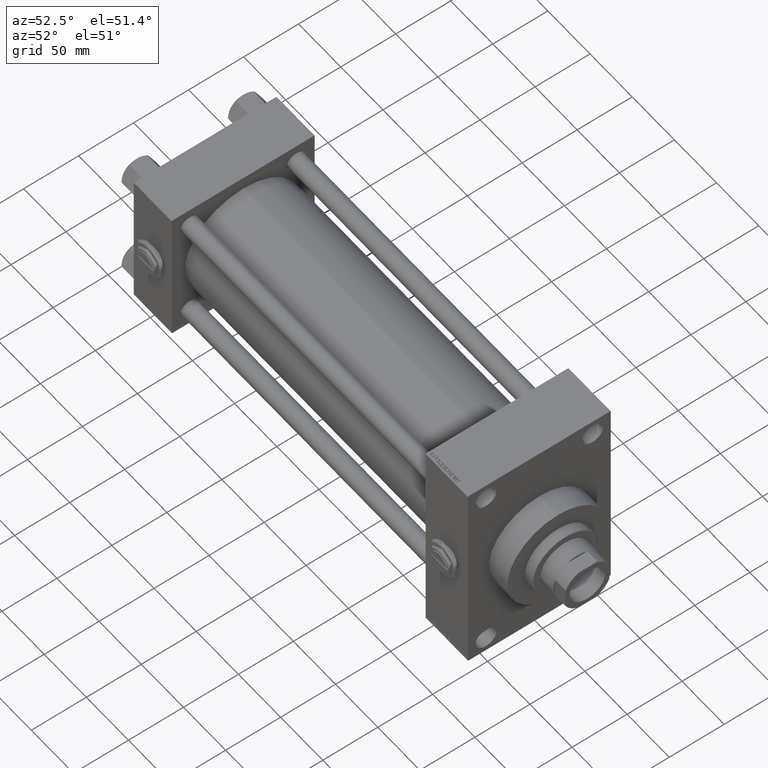
[diagram: clean part render]
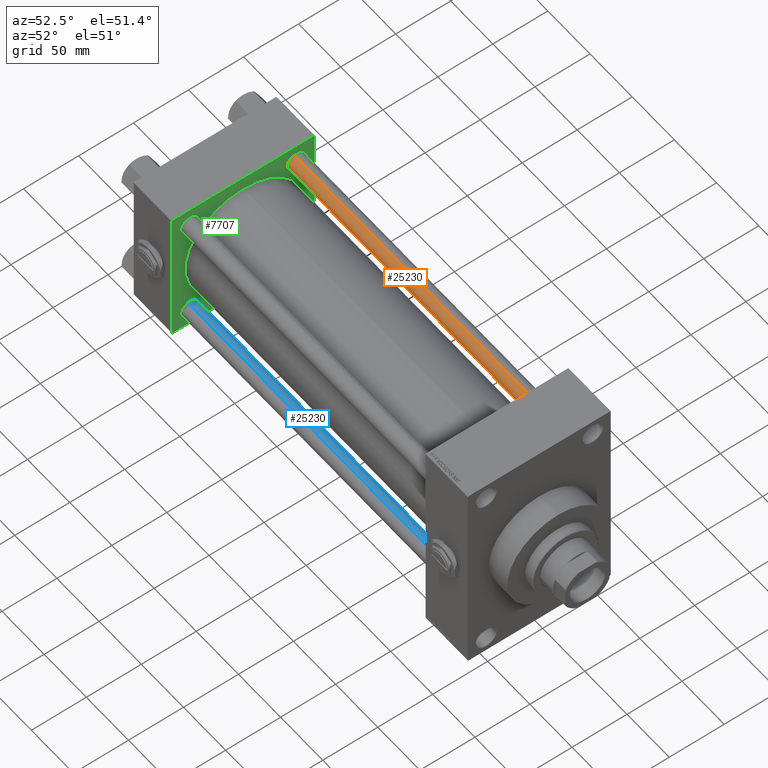
[diagram: same view with three faces highlighted in distinct colors, each labeled with its STEP entity id]
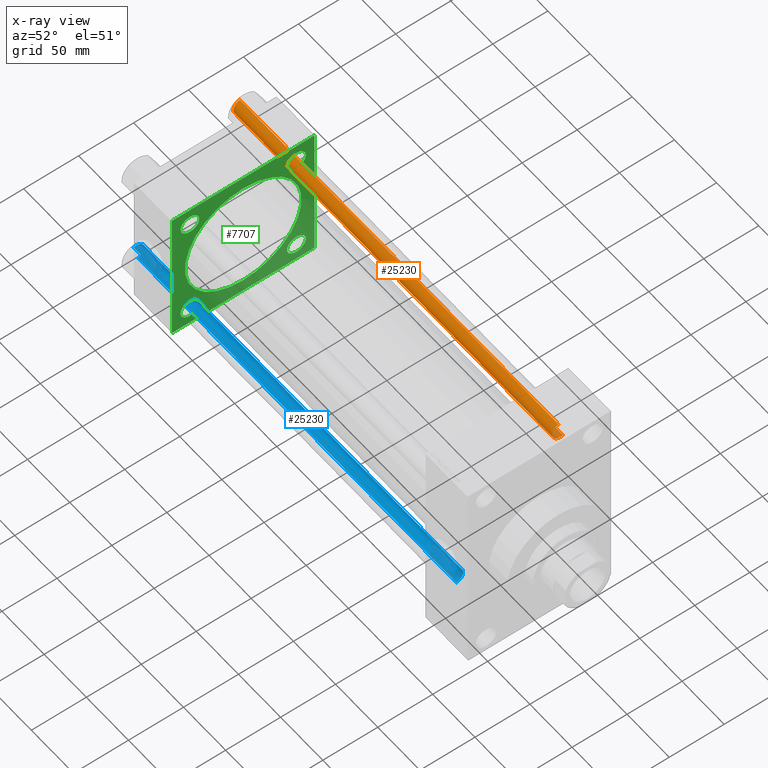
[diagram: x-ray of the same camera — body ghosted, the three highlighted faces saturated]
A machine part, auxiliary view with three faces highlighted in distinct colors.
The next image is the same camera in x-ray (body ghosted, the three faces saturated) — at least one of them is partly hidden behind the body in this view.
Their STEP definitions:

[orange] entity #25230 — the highlighted cylindrical surface (edge-blend (fillet) strip) has radius 8 mm, axis along (-1, -0, 0).
#1345 = CARTESIAN_POINT ( 'NONE',  ( 8.000000000000000000, 9.797174393178825657E-16, 379.0000000000000000 ) ) ;
#1782 = DIRECTION ( 'NONE',  ( -0.000000000000000000, -0.000000000000000000, 1.000000000000000000 ) ) ;
#2384 = CYLINDRICAL_SURFACE ( 'NONE', #41994, 8.000000000000000000 ) ;
#2885 = DIRECTION ( 'NONE',  ( -0.000000000000000000, -0.000000000000000000, -1.000000000000000000 ) ) ;
#4001 = CIRCLE ( 'NONE', #41771, 8.000000000000000000 ) ;
#4985 = AXIS2_PLACEMENT_3D ( 'NONE', #42379, #22509, #41626 ) ;
#5133 = LINE ( 'NONE', #1345, #46647 ) ;
#6631 = EDGE_CURVE ( 'NONE', #33173, #31522, #4001, .T. ) ;
#7261 = EDGE_CURVE ( 'NONE', #46521, #31522, #5133, .T. ) ;
#9751 = CARTESIAN_POINT ( 'NONE',  ( 8.000000000000000000, 9.797174393178825657E-16, 0.4999999999998894218 ) ) ;
#9963 = LINE ( 'NONE', #25561, #47897 ) ;
#10426 = VERTEX_POINT ( 'NONE', #31128 ) ;
#11110 = ORIENTED_EDGE ( 'NONE', *, *, #7261, .F. ) ;
#13484 = DIRECTION ( 'NONE',  ( -1.000000000000000000, 0.000000000000000000, 0.000000000000000000 ) ) ;
#16716 = DIRECTION ( 'NONE',  ( -0.000000000000000000, -0.000000000000000000, -1.000000000000000000 ) ) ;
#19319 = ORIENTED_EDGE ( 'NONE', *, *, #33143, .T. ) ;
#21166 = ORIENTED_EDGE ( 'NONE', *, *, #24322, .T. ) ;
#21447 = CARTESIAN_POINT ( 'NONE',  ( 8.000000000000000000, 9.797174393178825657E-16, 378.4999999999999432 ) ) ;
#21655 = EDGE_LOOP ( 'NONE', ( #11110, #21166, #19319, #22563 ) ) ;
#21787 = DIRECTION ( 'NONE',  ( -0.000000000000000000, -0.000000000000000000, -1.000000000000000000 ) ) ;
#22509 = DIRECTION ( 'NONE',  ( 0.000000000000000000, 0.000000000000000000, -1.000000000000000000 ) ) ;
#22563 = ORIENTED_EDGE ( 'NONE', *, *, #6631, .T. ) ;
#24322 = EDGE_CURVE ( 'NONE', #46521, #10426, #27497, .T. ) ;
#25203 = DIRECTION ( 'NONE',  ( 1.000000000000000000, 0.000000000000000000, 0.000000000000000000 ) ) ;
#25230 = ADVANCED_FACE ( 'NONE', ( #45179 ), #2384, .T. ) ;
#25561 = CARTESIAN_POINT ( 'NONE',  ( -8.000000000000000000, 0.000000000000000000, 379.0000000000000000 ) ) ;
#27497 = CIRCLE ( 'NONE', #4985, 8.000000000000000000 ) ;
#28719 = CARTESIAN_POINT ( 'NONE',  ( 0.000000000000000000, 0.000000000000000000, 0.4999999999998894218 ) ) ;
#31128 = CARTESIAN_POINT ( 'NONE',  ( -8.000000000000000000, 0.000000000000000000, 378.4999999999999432 ) ) ;
#31522 = VERTEX_POINT ( 'NONE', #9751 ) ;
#33143 = EDGE_CURVE ( 'NONE', #10426, #33173, #9963, .T. ) ;
#33173 = VERTEX_POINT ( 'NONE', #43949 ) ;
#40413 = CARTESIAN_POINT ( 'NONE',  ( 0.000000000000000000, 0.000000000000000000, 379.0000000000000000 ) ) ;
#41626 = DIRECTION ( 'NONE',  ( 1.000000000000000000, 0.000000000000000000, 0.000000000000000000 ) ) ;
#41771 = AXIS2_PLACEMENT_3D ( 'NONE', #28719, #1782, #25203 ) ;
#41994 = AXIS2_PLACEMENT_3D ( 'NONE', #40413, #21787, #13484 ) ;
#42379 = CARTESIAN_POINT ( 'NONE',  ( 0.000000000000000000, 0.000000000000000000, 378.4999999999999432 ) ) ;
#43949 = CARTESIAN_POINT ( 'NONE',  ( -8.000000000000000000, 0.000000000000000000, 0.4999999999998894218 ) ) ;
#45179 = FACE_OUTER_BOUND ( 'NONE', #21655, .T. ) ;
#46521 = VERTEX_POINT ( 'NONE', #21447 ) ;
#46647 = VECTOR ( 'NONE', #16716, 1000.000000000000000 ) ;
#47897 = VECTOR ( 'NONE', #2885, 1000.000000000000000 ) ;

[blue] entity #25230 — the highlighted cylindrical surface (edge-blend (fillet) strip) has radius 8 mm, axis along (-1, 0, 0).
#1345 = CARTESIAN_POINT ( 'NONE',  ( 8.000000000000000000, 9.797174393178825657E-16, 379.0000000000000000 ) ) ;
#1782 = DIRECTION ( 'NONE',  ( -0.000000000000000000, -0.000000000000000000, 1.000000000000000000 ) ) ;
#2384 = CYLINDRICAL_SURFACE ( 'NONE', #41994, 8.000000000000000000 ) ;
#2885 = DIRECTION ( 'NONE',  ( -0.000000000000000000, -0.000000000000000000, -1.000000000000000000 ) ) ;
#4001 = CIRCLE ( 'NONE', #41771, 8.000000000000000000 ) ;
#4985 = AXIS2_PLACEMENT_3D ( 'NONE', #42379, #22509, #41626 ) ;
#5133 = LINE ( 'NONE', #1345, #46647 ) ;
#6631 = EDGE_CURVE ( 'NONE', #33173, #31522, #4001, .T. ) ;
#7261 = EDGE_CURVE ( 'NONE', #46521, #31522, #5133, .T. ) ;
#9751 = CARTESIAN_POINT ( 'NONE',  ( 8.000000000000000000, 9.797174393178825657E-16, 0.4999999999998894218 ) ) ;
#9963 = LINE ( 'NONE', #25561, #47897 ) ;
#10426 = VERTEX_POINT ( 'NONE', #31128 ) ;
#11110 = ORIENTED_EDGE ( 'NONE', *, *, #7261, .F. ) ;
#13484 = DIRECTION ( 'NONE',  ( -1.000000000000000000, 0.000000000000000000, 0.000000000000000000 ) ) ;
#16716 = DIRECTION ( 'NONE',  ( -0.000000000000000000, -0.000000000000000000, -1.000000000000000000 ) ) ;
#19319 = ORIENTED_EDGE ( 'NONE', *, *, #33143, .T. ) ;
#21166 = ORIENTED_EDGE ( 'NONE', *, *, #24322, .T. ) ;
#21447 = CARTESIAN_POINT ( 'NONE',  ( 8.000000000000000000, 9.797174393178825657E-16, 378.4999999999999432 ) ) ;
#21655 = EDGE_LOOP ( 'NONE', ( #11110, #21166, #19319, #22563 ) ) ;
#21787 = DIRECTION ( 'NONE',  ( -0.000000000000000000, -0.000000000000000000, -1.000000000000000000 ) ) ;
#22509 = DIRECTION ( 'NONE',  ( 0.000000000000000000, 0.000000000000000000, -1.000000000000000000 ) ) ;
#22563 = ORIENTED_EDGE ( 'NONE', *, *, #6631, .T. ) ;
#24322 = EDGE_CURVE ( 'NONE', #46521, #10426, #27497, .T. ) ;
#25203 = DIRECTION ( 'NONE',  ( 1.000000000000000000, 0.000000000000000000, 0.000000000000000000 ) ) ;
#25230 = ADVANCED_FACE ( 'NONE', ( #45179 ), #2384, .T. ) ;
#25561 = CARTESIAN_POINT ( 'NONE',  ( -8.000000000000000000, 0.000000000000000000, 379.0000000000000000 ) ) ;
#27497 = CIRCLE ( 'NONE', #4985, 8.000000000000000000 ) ;
#28719 = CARTESIAN_POINT ( 'NONE',  ( 0.000000000000000000, 0.000000000000000000, 0.4999999999998894218 ) ) ;
#31128 = CARTESIAN_POINT ( 'NONE',  ( -8.000000000000000000, 0.000000000000000000, 378.4999999999999432 ) ) ;
#31522 = VERTEX_POINT ( 'NONE', #9751 ) ;
#33143 = EDGE_CURVE ( 'NONE', #10426, #33173, #9963, .T. ) ;
#33173 = VERTEX_POINT ( 'NONE', #43949 ) ;
#40413 = CARTESIAN_POINT ( 'NONE',  ( 0.000000000000000000, 0.000000000000000000, 379.0000000000000000 ) ) ;
#41626 = DIRECTION ( 'NONE',  ( 1.000000000000000000, 0.000000000000000000, 0.000000000000000000 ) ) ;
#41771 = AXIS2_PLACEMENT_3D ( 'NONE', #28719, #1782, #25203 ) ;
#41994 = AXIS2_PLACEMENT_3D ( 'NONE', #40413, #21787, #13484 ) ;
#42379 = CARTESIAN_POINT ( 'NONE',  ( 0.000000000000000000, 0.000000000000000000, 378.4999999999999432 ) ) ;
#43949 = CARTESIAN_POINT ( 'NONE',  ( -8.000000000000000000, 0.000000000000000000, 0.4999999999998894218 ) ) ;
#45179 = FACE_OUTER_BOUND ( 'NONE', #21655, .T. ) ;
#46521 = VERTEX_POINT ( 'NONE', #21447 ) ;
#46647 = VECTOR ( 'NONE', #16716, 1000.000000000000000 ) ;
#47897 = VECTOR ( 'NONE', #2885, 1000.000000000000000 ) ;

[green] entity #7707 — the highlighted planar face has unit normal (-1, 0, 0).
#72 = CIRCLE ( 'NONE', #18604, 8.499999999999952038 ) ;
#161 = ORIENTED_EDGE ( 'NONE', *, *, #5765, .F. ) ;
#284 = DIRECTION ( 'NONE',  ( 0.000000000000000000, -1.000000000000000000, -1.067522139062650425E-16 ) ) ;
#549 = AXIS2_PLACEMENT_3D ( 'NONE', #9946, #6657, #22020 ) ;
#576 = EDGE_CURVE ( 'NONE', #32080, #41753, #20695, .T. ) ;
#738 = EDGE_LOOP ( 'NONE', ( #42677, #45671 ) ) ;
#843 = AXIS2_PLACEMENT_3D ( 'NONE', #13878, #40544, #32999 ) ;
#871 = AXIS2_PLACEMENT_3D ( 'NONE', #24157, #20384, #38996 ) ;
#1547 = AXIS2_PLACEMENT_3D ( 'NONE', #41128, #34817, #11661 ) ;
#1933 = DIRECTION ( 'NONE',  ( -0.000000000000000000, -0.7071067811865672237, -0.7071067811865279218 ) ) ;
#2108 = CARTESIAN_POINT ( 'NONE',  ( 45.00000000000000000, 65.00000000000000000, 65.00000000000001421 ) ) ;
#2163 = CARTESIAN_POINT ( 'NONE',  ( 45.00000000000000000, -65.00000000000000000, -64.49999999999991473 ) ) ;
#2636 = CIRCLE ( 'NONE', #30775, 53.00000000000000711 ) ;
#2661 = ORIENTED_EDGE ( 'NONE', *, *, #46155, .T. ) ;
#2705 = CARTESIAN_POINT ( 'NONE',  ( 45.00000000000000000, -64.49999999999997158, 65.00000000000000000 ) ) ;
#2958 = CARTESIAN_POINT ( 'NONE',  ( 45.00000000000000000, -48.44999999999999574, -48.45000000000003126 ) ) ;
#3082 = ORIENTED_EDGE ( 'NONE', *, *, #16534, .F. ) ;
#3135 = ORIENTED_EDGE ( 'NONE', *, *, #28041, .T. ) ;
#3374 = ORIENTED_EDGE ( 'NONE', *, *, #8173, .T. ) ;
#3909 = DIRECTION ( 'NONE',  ( 1.000000000000000000, -0.000000000000000000, 0.000000000000000000 ) ) ;
#4021 = CARTESIAN_POINT ( 'NONE',  ( 45.00000000000000000, -48.44999999999999574, 56.95000000000008811 ) ) ;
#4052 = ORIENTED_EDGE ( 'NONE', *, *, #49639, .T. ) ;
#4556 = CARTESIAN_POINT ( 'NONE',  ( 45.00000000000000000, 64.49999999999997158, 65.00000000000001421 ) ) ;
#4975 = LINE ( 'NONE', #13776, #45740 ) ;
#5450 = EDGE_CURVE ( 'NONE', #18621, #9347, #38635, .T. ) ;
#5635 = VERTEX_POINT ( 'NONE', #43919 ) ;
#5765 = EDGE_CURVE ( 'NONE', #34366, #45328, #44962, .T. ) ;
#6067 = FACE_BOUND ( 'NONE', #13481, .T. ) ;
#6428 = VERTEX_POINT ( 'NONE', #11388 ) ;
#6657 = DIRECTION ( 'NONE',  ( -1.000000000000000000, 0.000000000000000000, -0.000000000000000000 ) ) ;
#6844 = CARTESIAN_POINT ( 'NONE',  ( 45.00000000000000000, 64.49999999999997158, -64.99999999999998579 ) ) ;
#7100 = CARTESIAN_POINT ( 'NONE',  ( 45.00000000000000000, 65.00000000000000000, -64.99999999999998579 ) ) ;
#7707 = ADVANCED_FACE ( 'NONE', ( #24466, #6067, #9351, #44331, #44566, #13132 ), #24710, .F. ) ;
#7939 = DIRECTION ( 'NONE',  ( 0.000000000000000000, 0.000000000000000000, 1.000000000000000000 ) ) ;
#8044 = VECTOR ( 'NONE', #25276, 1000.000000000000000 ) ;
#8173 = EDGE_CURVE ( 'NONE', #41753, #32080, #46681, .T. ) ;
#8645 = ORIENTED_EDGE ( 'NONE', *, *, #8913, .T. ) ;
#8671 = ORIENTED_EDGE ( 'NONE', *, *, #5450, .F. ) ;
#8691 = VERTEX_POINT ( 'NONE', #4021 ) ;
#8913 = EDGE_CURVE ( 'NONE', #42218, #33335, #72, .T. ) ;
#9022 = DIRECTION ( 'NONE',  ( 0.000000000000000000, 0.000000000000000000, 1.000000000000000000 ) ) ;
#9224 = DIRECTION ( 'NONE',  ( -1.000000000000000000, 0.000000000000000000, -0.000000000000000000 ) ) ;
#9347 = VERTEX_POINT ( 'NONE', #40354 ) ;
#9351 = FACE_BOUND ( 'NONE', #20090, .T. ) ;
#9635 = EDGE_CURVE ( 'NONE', #32200, #43659, #34787, .T. ) ;
#9731 = AXIS2_PLACEMENT_3D ( 'NONE', #2958, #14057, #44999 ) ;
#9946 = CARTESIAN_POINT ( 'NONE',  ( 45.00000000000000000, -48.44999999999999574, 48.45000000000003126 ) ) ;
#11388 = CARTESIAN_POINT ( 'NONE',  ( 45.00000000000000000, -65.00000000000000000, 64.50000000000000000 ) ) ;
#11661 = DIRECTION ( 'NONE',  ( 0.000000000000000000, 0.000000000000000000, 1.000000000000000000 ) ) ;
#11813 = AXIS2_PLACEMENT_3D ( 'NONE', #28604, #9224, #47208 ) ;
#13132 = FACE_OUTER_BOUND ( 'NONE', #39622, .T. ) ;
#13481 = EDGE_LOOP ( 'NONE', ( #4052, #8645 ) ) ;
#13568 = DIRECTION ( 'NONE',  ( 0.000000000000000000, 0.000000000000000000, 1.000000000000000000 ) ) ;
#13776 = CARTESIAN_POINT ( 'NONE',  ( 45.00000000000000000, -65.00000000000000000, 64.50000000000000000 ) ) ;
#13797 = CARTESIAN_POINT ( 'NONE',  ( 45.00000000000000000, 65.00000000000000000, -64.49999999999995737 ) ) ;
#13878 = CARTESIAN_POINT ( 'NONE',  ( 45.00000000000000000, 0.000000000000000000, 0.000000000000000000 ) ) ;
#14057 = DIRECTION ( 'NONE',  ( -1.000000000000000000, 0.000000000000000000, -0.000000000000000000 ) ) ;
#14254 = EDGE_CURVE ( 'NONE', #18621, #41014, #40966, .T. ) ;
#14925 = DIRECTION ( 'NONE',  ( 0.000000000000000000, 0.000000000000000000, 1.000000000000000000 ) ) ;
#15143 = ORIENTED_EDGE ( 'NONE', *, *, #38054, .T. ) ;
#15351 = VERTEX_POINT ( 'NONE', #2163 ) ;
#16534 = EDGE_CURVE ( 'NONE', #45328, #34366, #2636, .T. ) ;
#17273 = ORIENTED_EDGE ( 'NONE', *, *, #47082, .T. ) ;
#17572 = DIRECTION ( 'NONE',  ( 0.000000000000000000, -0.7071067811865474617, 0.7071067811865474617 ) ) ;
#18604 = AXIS2_PLACEMENT_3D ( 'NONE', #28916, #47775, #13568 ) ;
#18621 = VERTEX_POINT ( 'NONE', #33337 ) ;
#20090 = EDGE_LOOP ( 'NONE', ( #15143, #3135 ) ) ;
#20384 = DIRECTION ( 'NONE',  ( -1.000000000000000000, 0.000000000000000000, -0.000000000000000000 ) ) ;
#20695 = CIRCLE ( 'NONE', #11813, 8.500000000000063949 ) ;
#20851 = DIRECTION ( 'NONE',  ( -1.000000000000000000, 0.000000000000000000, -0.000000000000000000 ) ) ;
#21255 = CARTESIAN_POINT ( 'NONE',  ( 45.00000000000000000, -65.00000000000000000, 65.00000000000000000 ) ) ;
#21390 = EDGE_CURVE ( 'NONE', #5635, #30004, #24295, .T. ) ;
#21863 = CARTESIAN_POINT ( 'NONE',  ( 45.00000000000000000, 64.49999999999997158, 65.00000000000001421 ) ) ;
#22020 = DIRECTION ( 'NONE',  ( 0.000000000000000000, 0.000000000000000000, 1.000000000000000000 ) ) ;
#22240 = CARTESIAN_POINT ( 'NONE',  ( 45.00000000000000000, -64.49999999999994316, -65.00000000000000000 ) ) ;
#22803 = CARTESIAN_POINT ( 'NONE',  ( 45.00000000000000000, 65.00000000000000000, 65.00000000000001421 ) ) ;
#23552 = ORIENTED_EDGE ( 'NONE', *, *, #9635, .F. ) ;
#24157 = CARTESIAN_POINT ( 'NONE',  ( 45.00000000000000000, 48.45000000000000995, -48.45000000000001705 ) ) ;
#24295 = CIRCLE ( 'NONE', #39555, 8.499999999999952038 ) ;
#24466 = FACE_BOUND ( 'NONE', #28841, .T. ) ;
#24544 = DIRECTION ( 'NONE',  ( 0.000000000000000000, -1.000000000000000000, -1.067522139062650425E-16 ) ) ;
#24710 = PLANE ( 'NONE',  #843 ) ;
#24750 = CARTESIAN_POINT ( 'NONE',  ( 45.00000000000000000, -48.44999999999999574, -39.94999999999996732 ) ) ;
#24861 = EDGE_CURVE ( 'NONE', #32200, #9347, #48242, .T. ) ;
#25276 = DIRECTION ( 'NONE',  ( 0.000000000000000000, 0.000000000000000000, -1.000000000000000000 ) ) ;
#26004 = DIRECTION ( 'NONE',  ( -1.000000000000000000, 0.000000000000000000, -0.000000000000000000 ) ) ;
#26596 = CARTESIAN_POINT ( 'NONE',  ( 45.00000000000000000, 48.45000000000000995, 48.45000000000001705 ) ) ;
#26898 = VECTOR ( 'NONE', #37583, 1000.000000000000000 ) ;
#27754 = CARTESIAN_POINT ( 'NONE',  ( 45.00000000000000000, -64.49999999999994316, -65.00000000000000000 ) ) ;
#28041 = EDGE_CURVE ( 'NONE', #8691, #49077, #36471, .T. ) ;
#28301 = VECTOR ( 'NONE', #17572, 1000.000000000000114 ) ;
#28604 = CARTESIAN_POINT ( 'NONE',  ( 45.00000000000000000, -48.44999999999999574, -48.45000000000003126 ) ) ;
#28841 = EDGE_LOOP ( 'NONE', ( #3374, #41072 ) ) ;
#28916 = CARTESIAN_POINT ( 'NONE',  ( 45.00000000000000000, 48.45000000000000995, -48.45000000000001705 ) ) ;
#29805 = CIRCLE ( 'NONE', #871, 8.499999999999952038 ) ;
#29880 = DIRECTION ( 'NONE',  ( 0.000000000000000000, 0.000000000000000000, 1.000000000000000000 ) ) ;
#29976 = EDGE_CURVE ( 'NONE', #15351, #43659, #30524, .T. ) ;
#30004 = VERTEX_POINT ( 'NONE', #41114 ) ;
#30170 = CIRCLE ( 'NONE', #48651, 8.499999999999952038 ) ;
#30524 = LINE ( 'NONE', #22240, #26898 ) ;
#30600 = ORIENTED_EDGE ( 'NONE', *, *, #24861, .T. ) ;
#30775 = AXIS2_PLACEMENT_3D ( 'NONE', #31608, #3909, #7939 ) ;
#31608 = CARTESIAN_POINT ( 'NONE',  ( 44.99999999999998579, -2.602085213965210642E-15, 0.000000000000000000 ) ) ;
#32017 = EDGE_CURVE ( 'NONE', #30004, #5635, #30170, .T. ) ;
#32080 = VERTEX_POINT ( 'NONE', #24750 ) ;
#32200 = VERTEX_POINT ( 'NONE', #6844 ) ;
#32544 = CARTESIAN_POINT ( 'NONE',  ( 45.00000000000000000, -48.44999999999999574, -56.95000000000008811 ) ) ;
#32578 = LINE ( 'NONE', #21255, #8044 ) ;
#32588 = LINE ( 'NONE', #2108, #49720 ) ;
#32999 = DIRECTION ( 'NONE',  ( -0.000000000000000000, 0.000000000000000000, 1.000000000000000000 ) ) ;
#33266 = AXIS2_PLACEMENT_3D ( 'NONE', #46770, #20851, #9022 ) ;
#33335 = VERTEX_POINT ( 'NONE', #41894 ) ;
#33337 = CARTESIAN_POINT ( 'NONE',  ( 45.00000000000000000, 65.00000000000000000, 64.49999999999998579 ) ) ;
#33620 = VERTEX_POINT ( 'NONE', #2705 ) ;
#34292 = CARTESIAN_POINT ( 'NONE',  ( 45.00000000000000000, 48.45000000000000995, 48.45000000000001705 ) ) ;
#34366 = VERTEX_POINT ( 'NONE', #45371 ) ;
#34787 = LINE ( 'NONE', #7100, #37072 ) ;
#34817 = DIRECTION ( 'NONE',  ( 1.000000000000000000, -0.000000000000000000, 0.000000000000000000 ) ) ;
#35356 = ORIENTED_EDGE ( 'NONE', *, *, #43483, .T. ) ;
#35948 = CARTESIAN_POINT ( 'NONE',  ( 45.00000000000000000, 48.45000000000000995, -39.95000000000005969 ) ) ;
#36471 = CIRCLE ( 'NONE', #33266, 8.500000000000063949 ) ;
#36596 = CARTESIAN_POINT ( 'NONE',  ( 45.00000000000000000, -48.44999999999999574, 39.94999999999996732 ) ) ;
#37072 = VECTOR ( 'NONE', #284, 1000.000000000000000 ) ;
#37583 = DIRECTION ( 'NONE',  ( 0.000000000000000000, 0.7071067811865279218, -0.7071067811865671127 ) ) ;
#38054 = EDGE_CURVE ( 'NONE', #49077, #8691, #47928, .T. ) ;
#38635 = LINE ( 'NONE', #22803, #43358 ) ;
#38996 = DIRECTION ( 'NONE',  ( 0.000000000000000000, 0.000000000000000000, 1.000000000000000000 ) ) ;
#39555 = AXIS2_PLACEMENT_3D ( 'NONE', #34292, #26004, #14925 ) ;
#39622 = EDGE_LOOP ( 'NONE', ( #23552, #30600, #8671, #40881, #2661, #17273, #35356, #44600 ) ) ;
#40354 = CARTESIAN_POINT ( 'NONE',  ( 45.00000000000000000, 65.00000000000000000, -64.49999999999995737 ) ) ;
#40544 = DIRECTION ( 'NONE',  ( -1.000000000000000000, 0.000000000000000000, -0.000000000000000000 ) ) ;
#40881 = ORIENTED_EDGE ( 'NONE', *, *, #14254, .T. ) ;
#40966 = LINE ( 'NONE', #21863, #28301 ) ;
#41014 = VERTEX_POINT ( 'NONE', #4556 ) ;
#41072 = ORIENTED_EDGE ( 'NONE', *, *, #576, .T. ) ;
#41114 = CARTESIAN_POINT ( 'NONE',  ( 45.00000000000000000, 48.45000000000000995, 56.94999999999996732 ) ) ;
#41128 = CARTESIAN_POINT ( 'NONE',  ( 44.99999999999998579, -2.602085213965210642E-15, 0.000000000000000000 ) ) ;
#41753 = VERTEX_POINT ( 'NONE', #32544 ) ;
#41894 = CARTESIAN_POINT ( 'NONE',  ( 45.00000000000000000, 48.45000000000000995, -56.94999999999996732 ) ) ;
#42218 = VERTEX_POINT ( 'NONE', #35948 ) ;
#42418 = DIRECTION ( 'NONE',  ( 0.000000000000000000, 0.000000000000000000, -1.000000000000000000 ) ) ;
#42677 = ORIENTED_EDGE ( 'NONE', *, *, #21390, .T. ) ;
#43358 = VECTOR ( 'NONE', #42418, 1000.000000000000000 ) ;
#43483 = EDGE_CURVE ( 'NONE', #6428, #15351, #32578, .T. ) ;
#43659 = VERTEX_POINT ( 'NONE', #27754 ) ;
#43919 = CARTESIAN_POINT ( 'NONE',  ( 45.00000000000000000, 48.45000000000000995, 39.95000000000005969 ) ) ;
#44331 = FACE_BOUND ( 'NONE', #738, .T. ) ;
#44469 = CARTESIAN_POINT ( 'NONE',  ( 44.99999999999998579, -2.602085213965210642E-15, 53.00000000000000711 ) ) ;
#44493 = DIRECTION ( 'NONE',  ( -0.000000000000000000, 0.7071067811865474617, 0.7071067811865474617 ) ) ;
#44566 = FACE_BOUND ( 'NONE', #49418, .T. ) ;
#44600 = ORIENTED_EDGE ( 'NONE', *, *, #29976, .T. ) ;
#44962 = CIRCLE ( 'NONE', #1547, 53.00000000000000711 ) ;
#44999 = DIRECTION ( 'NONE',  ( 0.000000000000000000, 0.000000000000000000, 1.000000000000000000 ) ) ;
#45225 = DIRECTION ( 'NONE',  ( -1.000000000000000000, 0.000000000000000000, -0.000000000000000000 ) ) ;
#45328 = VERTEX_POINT ( 'NONE', #44469 ) ;
#45371 = CARTESIAN_POINT ( 'NONE',  ( 44.99999999999998579, 3.888542821515762466E-15, -53.00000000000000711 ) ) ;
#45671 = ORIENTED_EDGE ( 'NONE', *, *, #32017, .T. ) ;
#45740 = VECTOR ( 'NONE', #1933, 1000.000000000000000 ) ;
#46155 = EDGE_CURVE ( 'NONE', #41014, #33620, #32588, .T. ) ;
#46681 = CIRCLE ( 'NONE', #9731, 8.500000000000063949 ) ;
#46770 = CARTESIAN_POINT ( 'NONE',  ( 45.00000000000000000, -48.44999999999999574, 48.45000000000003126 ) ) ;
#46799 = VECTOR ( 'NONE', #44493, 1000.000000000000114 ) ;
#47082 = EDGE_CURVE ( 'NONE', #33620, #6428, #4975, .T. ) ;
#47208 = DIRECTION ( 'NONE',  ( 0.000000000000000000, 0.000000000000000000, 1.000000000000000000 ) ) ;
#47775 = DIRECTION ( 'NONE',  ( -1.000000000000000000, 0.000000000000000000, -0.000000000000000000 ) ) ;
#47928 = CIRCLE ( 'NONE', #549, 8.500000000000063949 ) ;
#48242 = LINE ( 'NONE', #13797, #46799 ) ;
#48651 = AXIS2_PLACEMENT_3D ( 'NONE', #26596, #45225, #29880 ) ;
#49077 = VERTEX_POINT ( 'NONE', #36596 ) ;
#49418 = EDGE_LOOP ( 'NONE', ( #3082, #161 ) ) ;
#49639 = EDGE_CURVE ( 'NONE', #33335, #42218, #29805, .T. ) ;
#49720 = VECTOR ( 'NONE', #24544, 1000.000000000000000 ) ;